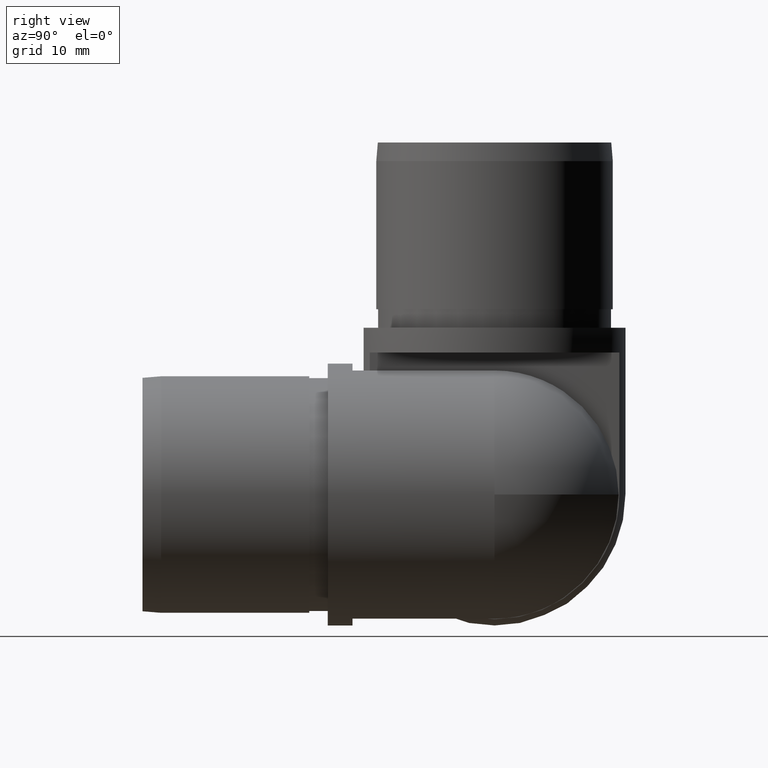
[diagram: clean part render]
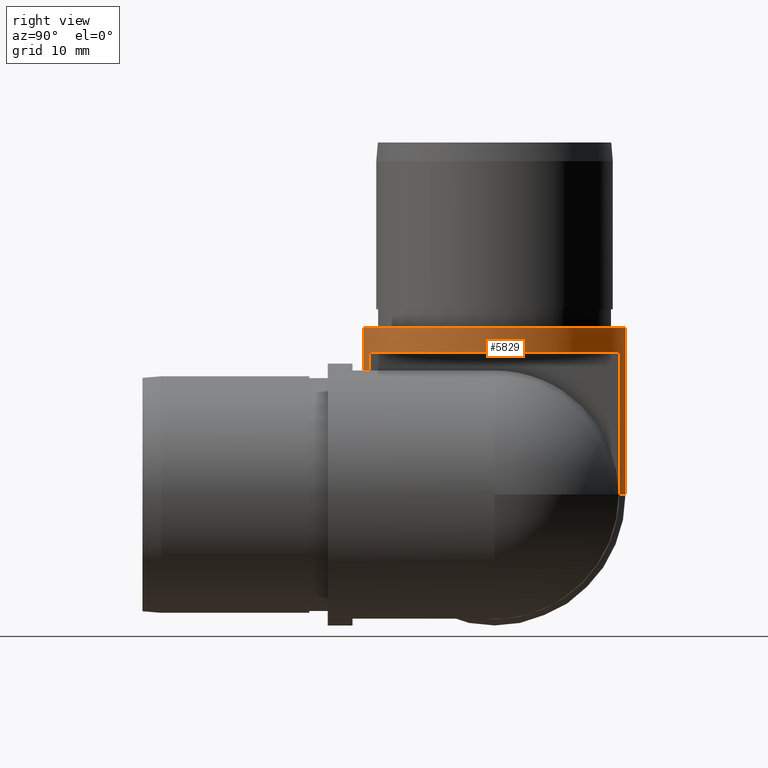
[diagram: same view with one face highlighted and labeled with its STEP entity id]
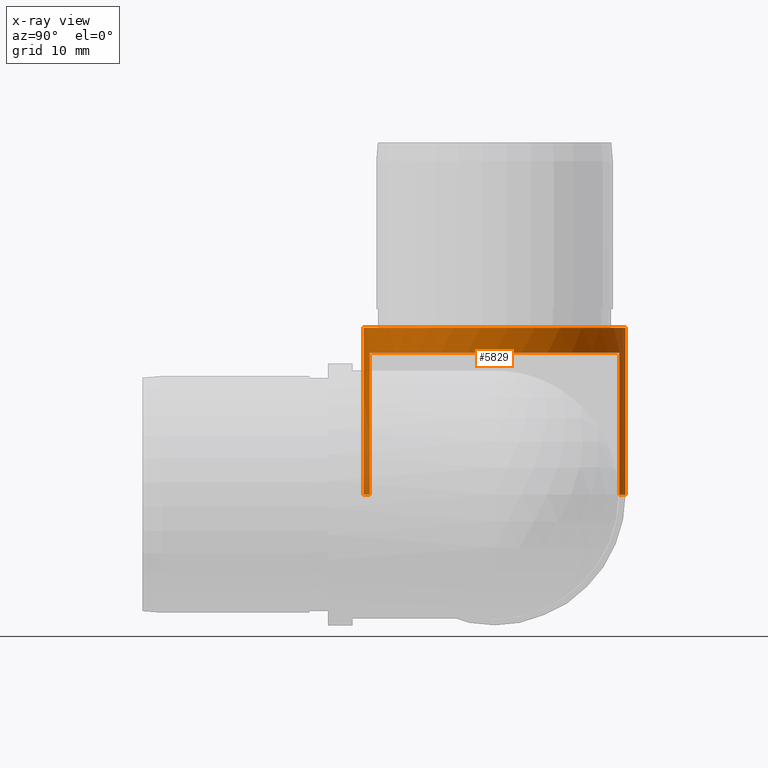
[diagram: x-ray of the same camera — body ghosted, the highlighted face saturated]
A machine part, right view. The second image highlights one B-rep face of the part: STEP entity #5829.
The next image is the same camera in x-ray: the body ghosted, the highlighted face saturated — about 6% of this face is hidden behind the body in this view.
In plain terms, the highlighted cylindrical surface (partial cylindrical patch) has radius 21.2 mm, axis along (0, 0, 1).
Its self-contained STEP definition (entity closure, byte-faithful):
#61 = ORIENTED_EDGE ( 'NONE', *, *, #3730, .T. ) ;
#65 = DIRECTION ( 'NONE',  ( 3.604241418970174921E-22, -1.000000000000000000, -9.212559859573891440E-44 ) ) ;
#190 = CARTESIAN_POINT ( 'NONE',  ( 6.400000000000099831, 57.00000000000000000, 20.21088815465574839 ) ) ;
#197 = VECTOR ( 'NONE', #1923, 1000.000000000000000 ) ;
#231 = EDGE_CURVE ( 'NONE', #1437, #803, #3469, .T. ) ;
#275 = VERTEX_POINT ( 'NONE', #5625 ) ;
#301 = AXIS2_PLACEMENT_3D ( 'NONE', #4896, #2547, #3027 ) ;
#437 = CARTESIAN_POINT ( 'NONE',  ( 0.0000000000000000000, 57.00000000000000000, 0.0000000000000000000 ) ) ;
#481 = VECTOR ( 'NONE', #904, 1000.000000000000000 ) ;
#557 = CIRCLE ( 'NONE', #3355, 21.19999999999999929 ) ;
#776 = VERTEX_POINT ( 'NONE', #1241 ) ;
#803 = VERTEX_POINT ( 'NONE', #1434 ) ;
#827 = EDGE_CURVE ( 'NONE', #275, #1682, #976, .T. ) ;
#904 = DIRECTION ( 'NONE',  ( -3.604241418970174451E-22, 1.000000000000000000, -3.642919299551239431E-17 ) ) ;
#957 = VERTEX_POINT ( 'NONE', #190 ) ;
#976 = LINE ( 'NONE', #1076, #2062 ) ;
#1076 = CARTESIAN_POINT ( 'NONE',  ( -5.418789873370109705E-21, 57.00000000000000000, -21.19999999999999929 ) ) ;
#1241 = CARTESIAN_POINT ( 'NONE',  ( 6.400000000000090949, 34.00000000000000000, 20.21088815465564892 ) ) ;
#1434 = CARTESIAN_POINT ( 'NONE',  ( 2.596261498708470056E-15, 30.00000000000000000, 21.19999999999999929 ) ) ;
#1437 = VERTEX_POINT ( 'NONE', #1597 ) ;
#1545 = AXIS2_PLACEMENT_3D ( 'NONE', #437, #2359, #3209 ) ;
#1579 = ORIENTED_EDGE ( 'NONE', *, *, #827, .F. ) ;
#1597 = CARTESIAN_POINT ( 'NONE',  ( 2.596261498708184883E-15, 57.00000000000000000, 21.19999999999999929 ) ) ;
#1619 = ORIENTED_EDGE ( 'NONE', *, *, #4667, .F. ) ;
#1682 = VERTEX_POINT ( 'NONE', #3206 ) ;
#1923 = DIRECTION ( 'NONE',  ( 3.604241418970174451E-22, -1.000000000000000000, 3.642919299551239431E-17 ) ) ;
#2027 = DIRECTION ( 'NONE',  ( 3.604241418970174451E-22, -1.000000000000000000, 3.642919299551239431E-17 ) ) ;
#2062 = VECTOR ( 'NONE', #2027, 1000.000000000000000 ) ;
#2260 = EDGE_LOOP ( 'NONE', ( #1619, #5940, #3823, #1579, #2425, #4841, #3165, #61 ) ) ;
#2313 = AXIS2_PLACEMENT_3D ( 'NONE', #5716, #3336, #4378 ) ;
#2328 = CARTESIAN_POINT ( 'NONE',  ( 2.596256632982280293E-15, 57.00000000000000000, 21.19999999999999929 ) ) ;
#2359 = DIRECTION ( 'NONE',  ( -3.604241418723654948E-22, 1.000000000000000000, 9.212559858943779779E-44 ) ) ;
#2425 = ORIENTED_EDGE ( 'NONE', *, *, #4353, .F. ) ;
#2547 = DIRECTION ( 'NONE',  ( -3.604241418723654948E-22, 1.000000000000000000, 9.212559858943779779E-44 ) ) ;
#2704 = CYLINDRICAL_SURFACE ( 'NONE', #4157, 21.19999999999999929 ) ;
#2834 = DIRECTION ( 'NONE',  ( -2.556032958722591386E-22, 0.0000000000000000000, -1.000000000000000000 ) ) ;
#2867 = CIRCLE ( 'NONE', #2313, 21.19999999999999929 ) ;
#3027 = DIRECTION ( 'NONE',  ( 2.556032959136840297E-22, 0.0000000000000000000, 1.000000000000000000 ) ) ;
#3165 = ORIENTED_EDGE ( 'NONE', *, *, #4239, .T. ) ;
#3182 = VERTEX_POINT ( 'NONE', #3959 ) ;
#3206 = CARTESIAN_POINT ( 'NONE',  ( 9.020561533200409198E-14, 30.00000000000000000, -21.19999999999999929 ) ) ;
#3209 = DIRECTION ( 'NONE',  ( 2.556032959136840297E-22, 0.0000000000000000000, 1.000000000000000000 ) ) ;
#3271 = DIRECTION ( 'NONE',  ( 3.604241418723654948E-22, -1.000000000000000000, -9.212559857450710143E-44 ) ) ;
#3336 = DIRECTION ( 'NONE',  ( 3.604241418723654948E-22, -1.000000000000000000, -9.212559860070139570E-44 ) ) ;
#3355 = AXIS2_PLACEMENT_3D ( 'NONE', #3737, #3271, #2834 ) ;
#3381 = DIRECTION ( 'NONE',  ( -2.556032959136840297E-22, 0.0000000000000000000, -1.000000000000000000 ) ) ;
#3469 = LINE ( 'NONE', #2328, #197 ) ;
#3730 = EDGE_CURVE ( 'NONE', #776, #957, #5719, .T. ) ;
#3737 = CARTESIAN_POINT ( 'NONE',  ( 9.020562075079399415E-14, 30.00000000000000000, 0.0000000000000000000 ) ) ;
#3751 = CARTESIAN_POINT ( 'NONE',  ( 6.400000000000080291, 57.00000000000000000, -20.21088815465574839 ) ) ;
#3821 = DIRECTION ( 'NONE',  ( 3.604241418970174451E-22, -1.000000000000000000, 3.642919299551239431E-17 ) ) ;
#3823 = ORIENTED_EDGE ( 'NONE', *, *, #5164, .F. ) ;
#3898 = VERTEX_POINT ( 'NONE', #5920 ) ;
#3926 = CIRCLE ( 'NONE', #1545, 21.19999999999999929 ) ;
#3959 = CARTESIAN_POINT ( 'NONE',  ( 6.400000000000080291, 34.00000000000000000, -20.21088815465594735 ) ) ;
#3961 = FACE_OUTER_BOUND ( 'NONE', #2260, .T. ) ;
#4157 = AXIS2_PLACEMENT_3D ( 'NONE', #5357, #65, #3381 ) ;
#4239 = EDGE_CURVE ( 'NONE', #3182, #776, #2867, .T. ) ;
#4353 = EDGE_CURVE ( 'NONE', #3898, #275, #5138, .T. ) ;
#4378 = DIRECTION ( 'NONE',  ( -2.556032959449357695E-22, 0.0000000000000000000, -1.000000000000000000 ) ) ;
#4667 = EDGE_CURVE ( 'NONE', #1437, #957, #3926, .T. ) ;
#4820 = EDGE_CURVE ( 'NONE', #3898, #3182, #5800, .T. ) ;
#4841 = ORIENTED_EDGE ( 'NONE', *, *, #4820, .T. ) ;
#4896 = CARTESIAN_POINT ( 'NONE',  ( 0.0000000000000000000, 57.00000000000000000, 0.0000000000000000000 ) ) ;
#5138 = CIRCLE ( 'NONE', #301, 21.19999999999999929 ) ;
#5164 = EDGE_CURVE ( 'NONE', #1682, #803, #557, .T. ) ;
#5357 = CARTESIAN_POINT ( 'NONE',  ( 0.0000000000000000000, 57.00000000000000000, 0.0000000000000000000 ) ) ;
#5506 = VECTOR ( 'NONE', #3821, 1000.000000000000000 ) ;
#5625 = CARTESIAN_POINT ( 'NONE',  ( -5.530639577603291043E-22, 57.00000000000000000, -21.19999999999999929 ) ) ;
#5716 = CARTESIAN_POINT ( 'NONE',  ( -1.214306433183764019E-14, 34.00000000000000000, -2.949029909160570167E-14 ) ) ;
#5719 = LINE ( 'NONE', #6061, #481 ) ;
#5800 = LINE ( 'NONE', #3751, #5506 ) ;
#5829 = ADVANCED_FACE ( 'NONE', ( #3961 ), #2704, .T. ) ;
#5920 = CARTESIAN_POINT ( 'NONE',  ( 6.400000000000080291, 57.00000000000000000, -20.21088815465574839 ) ) ;
#5940 = ORIENTED_EDGE ( 'NONE', *, *, #231, .T. ) ;
#6061 = CARTESIAN_POINT ( 'NONE',  ( 6.400000000000099831, 57.00000000000000000, 20.21088815465574839 ) ) ;